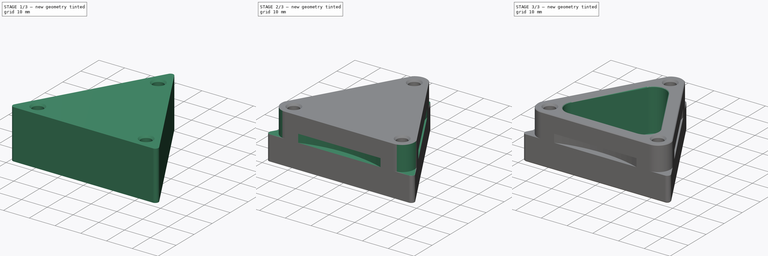
[diagram: build sequence overview — one tinted view per stage of 3, left to right]
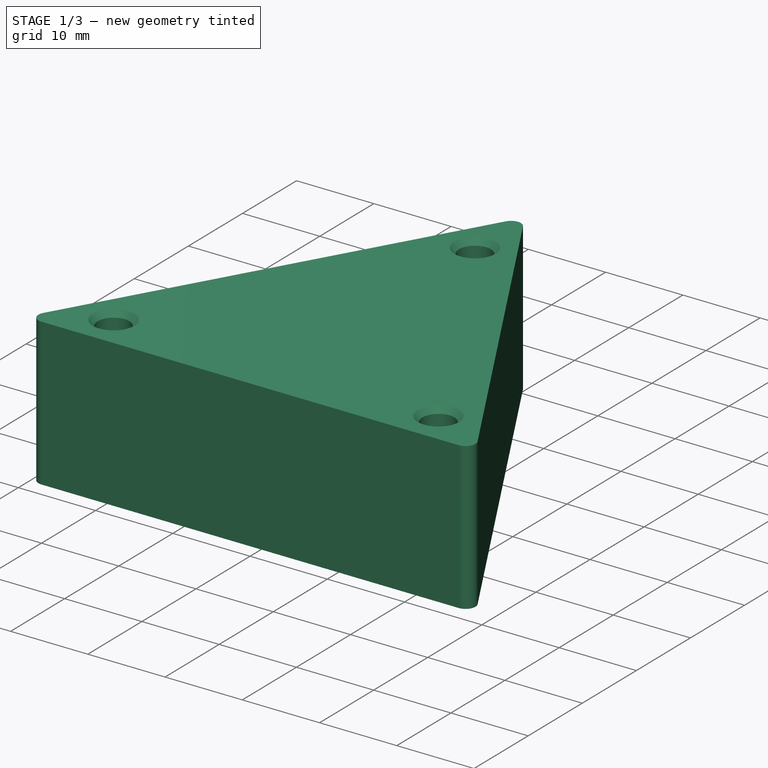
[diagram: stage 1 of 3 — iso view after this stage's code; geometry added in this stage tinted green]
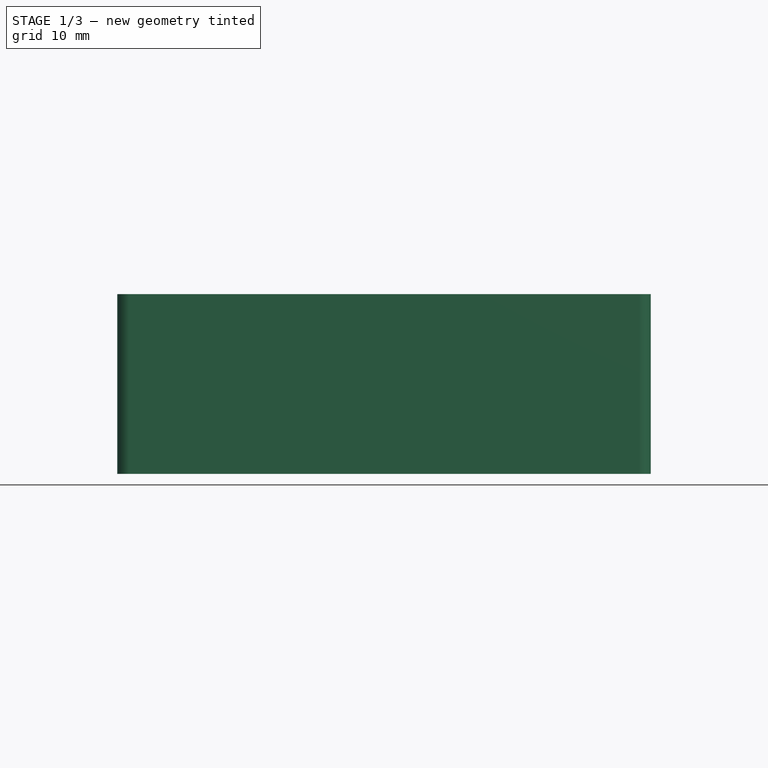
[diagram: stage 1 of 3 — front view after this stage's code; geometry added in this stage tinted green]
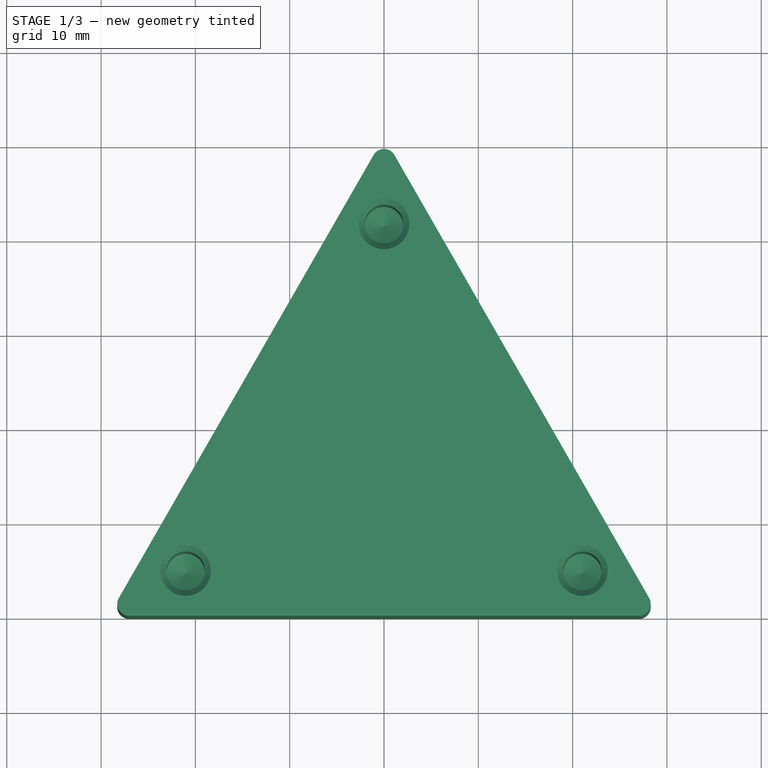
[diagram: stage 1 of 3 — top view after this stage's code; geometry added in this stage tinted green]
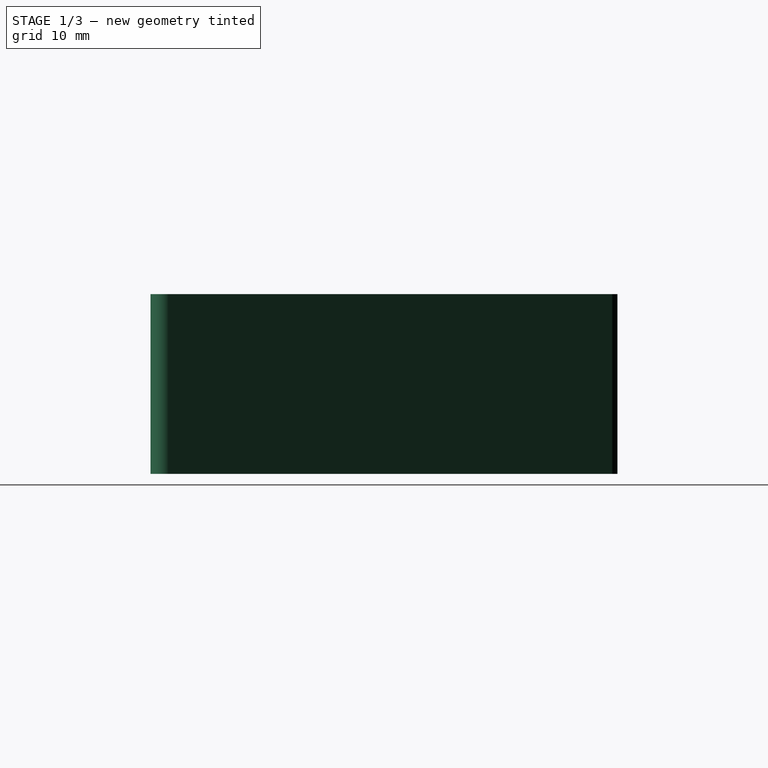
[diagram: stage 1 of 3 — right view after this stage's code; geometry added in this stage tinted green]
FCSTD DOCUMENT  (FreeCAD 0.19R24291 (Git))
Label: TITAN-4M
License: All rights reserved
LicenseURL: http://en.wikipedia.org/wiki/All_rights_reserved
objects: Sketcher::SketchObject×5, PartDesign::Pocket×3, PartDesign::Fillet×2, PartDesign::Pad×1, PartDesign::Hole×1, PartDesign::Chamfer×1, PartDesign::Body×1
note: 22 computed .brp shape members not serialized (recipe doc carries the construction recipe); baked Part::Feature solids carry a one-line shape summary decoded from their .brp

FEATURE [Sketcher::SketchObject] Sketch
  FullyConstrained = true
  MapMode = 5
  Support = -> [XY_Plane]
  sketch-geometry (3):
    g0: LineSegment StartX=-29.21 StartY=0 StartZ=0 EndX=29.21 EndY=0 EndZ=0
    g1: LineSegment StartX=29.21 StartY=0 StartZ=0 EndX=0 EndY=50.8 EndZ=0
    g2: LineSegment StartX=0 StartY=50.8 StartZ=0 EndX=-29.21 EndY=0 EndZ=0
  constraints (8):
    c: Coincident(g0,g1)
    c: PointOnObject(g1,g-2)
    c: Coincident(g1,g2)
    c: Coincident(g2,g0)
    c: DistanceY(g-1,g1) = 50.8
    c: Symmetric(g0,g0,g-1)
    c: PointOnObject(g0,g-1)
    c: DistanceX(g0,g-1) = 29.21
FEATURE [PartDesign::Pad] Pad
  Direction = (1,1,1)
  Length = 19.05
  Length2 = 99.9998
  Profile = -> Sketch
  Refine = true
  Type = 0
FEATURE [PartDesign::Fillet] Fillet
  Base = -> Pad [Edge1,Edge2,Edge5]
  BaseFeature = -> Pad
  Radius = 1.27
  Refine = true
  SupportTransform = false
FEATURE [Sketcher::SketchObject] Sketch001
  FullyConstrained = true
  MapMode = 5
  Placement = pos=(0,0,19.05) rot=(0,0,1;0rad)
  Support = -> [Fillet]
  sketch-geometry (3):
    g0: Circle CenterX=0 CenterY=41.5798 CenterZ=0 NormalX=0 NormalY=0 NormalZ=1 AngleXU=0 Radius=1.905
    g1: Circle CenterX=21.0312 CenterY=4.8006 CenterZ=0 NormalX=0 NormalY=0 NormalZ=1 AngleXU=0 Radius=1.905
    g2: Circle CenterX=-21.0312 CenterY=4.8006 CenterZ=0 NormalX=0 NormalY=0 NormalZ=1 AngleXU=0 Radius=1.905
  constraints (8):
    c: PointOnObject(g0,g-2)
    c: Equal(g2,g1)
    c: Equal(g1,g0)
    c: Diameter(g0) = 3.81
    c: DistanceY(g-1,g0) = 41.5798
    c: Symmetric(g1,g2,g-2)
    c: DistanceX(g2,g-1) = 21.0312
    c: DistanceY(g-1,g2) = 4.8006
FEATURE [PartDesign::Hole] Hole
  BaseFeature = -> Fillet
  Depth = 14.986
  DepthType = 0
  Diameter = 4.1
  DrillForDepth = false
  DrillPoint = 1
  DrillPointAngle = 118
  HoleCutCountersinkAngle = 82
  HoleCutCustomValues = false
  HoleCutDepth = 0
  HoleCutDiameter = 5.3594
  HoleCutType = 2
  ModelActualThread = false
  Profile = -> Sketch001
  Refine = true
  Tapered = false
  TaperedAngle = 90
  ThreadAngle = 60
  ThreadClass = 0
  ThreadCutOffInner = 0.085953
  ThreadCutOffOuter = 0.171906
  ThreadDirection = 0
  ThreadFit = 0
  ThreadPitch = 0.794
  ThreadSize = 8
  ThreadType = 4
  Threaded = true
  expr: Depth = 0.375" + 0.215"
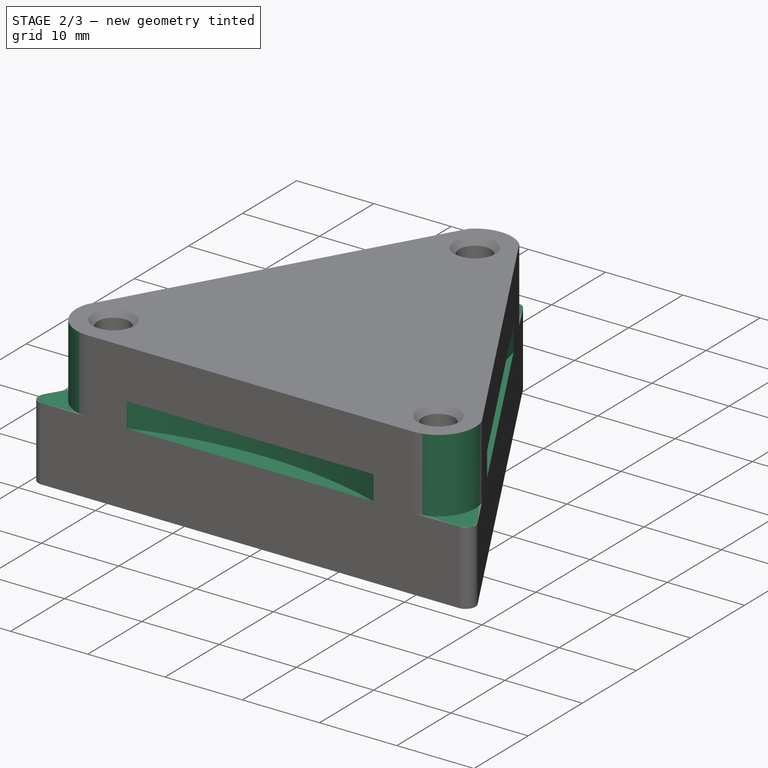
[diagram: stage 2 of 3 — iso view after this stage's code; geometry added in this stage tinted green]
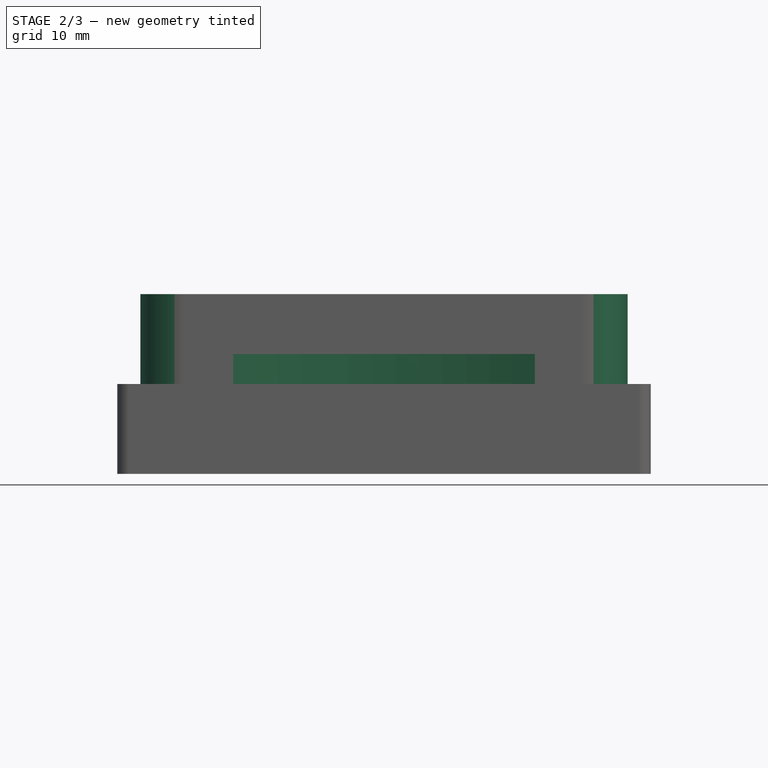
[diagram: stage 2 of 3 — front view after this stage's code; geometry added in this stage tinted green]
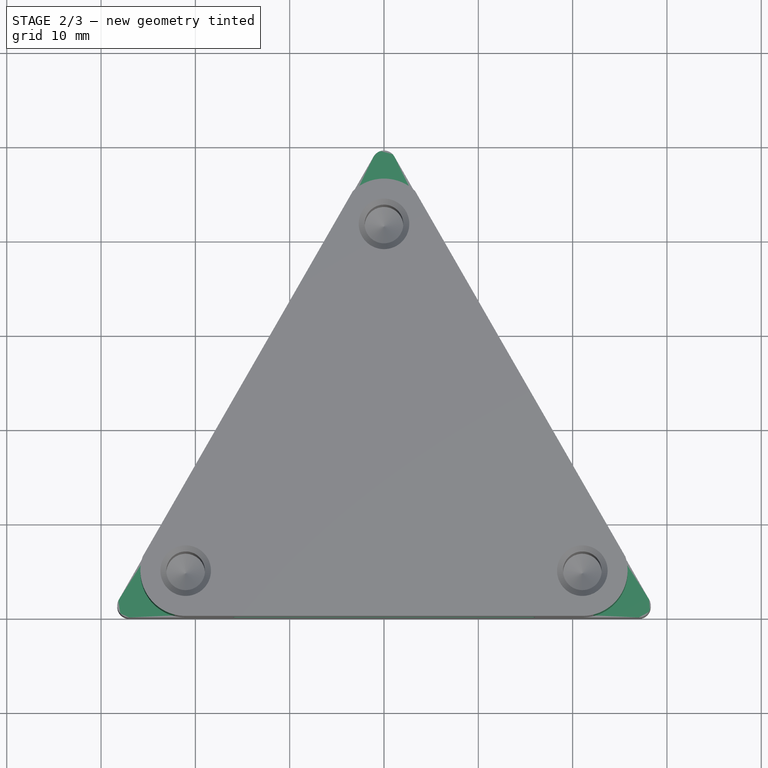
[diagram: stage 2 of 3 — top view after this stage's code; geometry added in this stage tinted green]
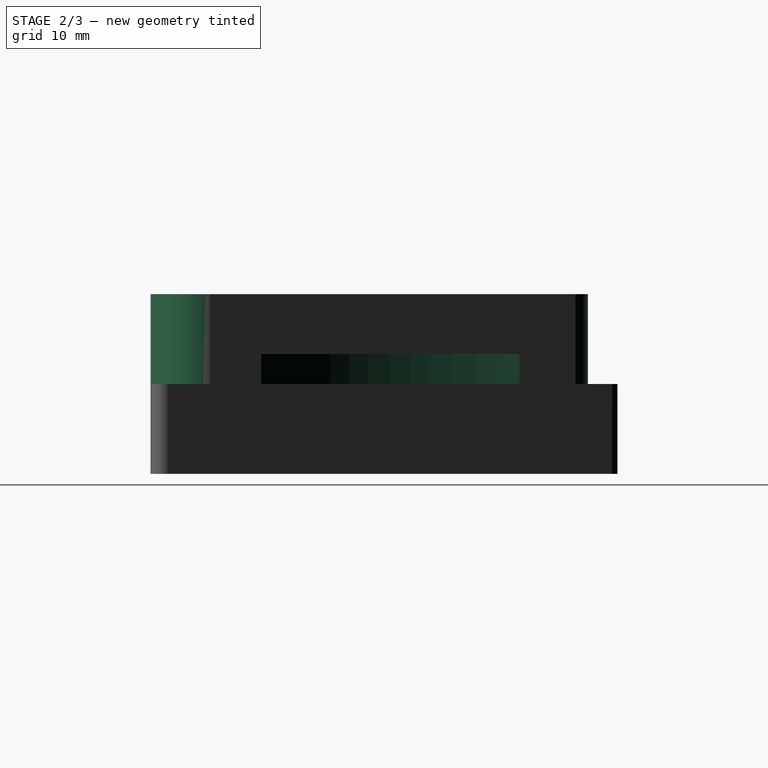
[diagram: stage 2 of 3 — right view after this stage's code; geometry added in this stage tinted green]
FEATURE [Sketcher::SketchObject] Sketch002
  ExternalGeometry = -> [Hole]
  FullyConstrained = true
  MapMode = 5
  Placement = pos=(0,0,19.05) rot=(0,0,1;0rad)
  Support = -> [Hole]
  sketch-geometry (7):
    g0: LineSegment StartX=-25.1986 StartY=7.1836 StartZ=0 EndX=-4.16738 EndY=43.9628 EndZ=0
    g1: ArcOfCircle CenterX=0 CenterY=41.5798 CenterZ=0 NormalX=0 NormalY=0 NormalZ=1 AngleXU=0 Radius=4.8006 StartAngle=0.519444 EndAngle=2.62215
    g2: LineSegment StartX=4.16738 StartY=43.9628 StartZ=0 EndX=25.1986 EndY=7.1836 EndZ=0
    g3: ArcOfCircle CenterX=21.0312 CenterY=4.8006 CenterZ=0 NormalX=0 NormalY=0 NormalZ=1 AngleXU=0 Radius=4.8006 StartAngle=4.71239 EndAngle=6.80263
    g4: LineSegment StartX=21.0312 StartY=0 StartZ=0 EndX=-21.0312 EndY=0 EndZ=0
    g5: ArcOfCircle CenterX=-21.0312 CenterY=4.8006 CenterZ=0 NormalX=0 NormalY=0 NormalZ=1 AngleXU=0 Radius=4.8006 StartAngle=2.62215 EndAngle=4.71239
    g6: Circle CenterX=0 CenterY=0 CenterZ=0 NormalX=0 NormalY=0 NormalZ=1 AngleXU=0 Radius=63.5
  constraints (14):
    c: Tangent(g0,g1) = 1.5708
    c: Tangent(g1,g2) = 1.5708
    c: Tangent(g2,g3) = 1.5708
    c: Tangent(g3,g4) = 1.5708
    c: Tangent(g4,g5) = 1.5708
    c: Tangent(g5,g0) = 1.5708
    c: Horizontal(g4)
    c: Coincident(g5,g-4)
    c: Coincident(g3,g-5)
    c: Coincident(g1,g-3)
    c: Equal(g1,g5)
    c: Diameter(g1) = 9.6012
    c: Coincident(g6,g-1)
    c: Diameter(g6) = 127
FEATURE [PartDesign::Pocket] Pocket
  BaseFeature = -> Hole
  Length = 9.525
  Length2 = 99.9998
  Profile = -> Sketch002
  Refine = true
  Type = 0
FEATURE [Sketcher::SketchObject] Sketch003
  FullyConstrained = true
  MapMode = 5
  Placement = pos=(0,0,9.525) rot=(0,0,1;0rad)
  Support = -> [Pocket]
  sketch-geometry (10):
    g0: Circle CenterX=0 CenterY=16.9418 CenterZ=0 NormalX=0 NormalY=0 NormalZ=1 AngleXU=0 Radius=65.1588
    g1: GeomPoint X=56.4388 Y=49.5046 Z=0
    g2: LineSegment StartX=56.4388 StartY=49.5046 StartZ=0 EndX=0 EndY=16.9418 EndZ=0
    g3: LineSegment StartX=56.4388 StartY=49.5046 StartZ=0 EndX=-56.4388 EndY=49.5046 EndZ=0
    g4: ArcOfCircle CenterX=-56.4388 CenterY=49.5046 CenterZ=0 NormalX=0 NormalY=0 NormalZ=1 AngleXU=0 Radius=50.8 StartAngle=4.58952 EndAngle=6.93024
    g5: ArcOfCircle CenterX=56.4388 CenterY=49.5046 CenterZ=0 NormalX=0 NormalY=0 NormalZ=1 AngleXU=0 Radius=50.8 StartAngle=2.49453 EndAngle=4.83526
    g6: ArcOfCircle CenterX=0 CenterY=-48.217 CenterZ=0 NormalX=0 NormalY=0 NormalZ=1 AngleXU=0 Radius=50.8 StartAngle=0.400432 EndAngle=2.74116
    g7: LineSegment StartX=-15.9075 StartY=80.129 StartZ=0 EndX=-62.665 EndY=-0.912406 EndZ=0
    g8: LineSegment StartX=15.9075 StartY=80.129 StartZ=0 EndX=62.665 EndY=-0.912406 EndZ=0
    g9: LineSegment StartX=46.7813 StartY=-28.4144 StartZ=0 EndX=-46.7813 EndY=-28.4144 EndZ=0
  constraints (29):
    c: PointOnObject(g0,g-2)
    c: DistanceY(g-1,g0) = 16.9418
    c: PointOnObject(g1,g0)
    c: DistanceY(g-1,g1) = 49.5046
    c: DistanceX(g-1,g1) = 56.4388
    c: Coincident(g2,g1)
    c: Coincident(g2,g0)
    c: Coincident(g3,g1)
    c: PointOnObject(g3,g0)
    c: Horizontal(g3)
    c: Coincident(g4,g3)
    c: Coincident(g5,g1)
    c: PointOnObject(g6,g-2)
    c: PointOnObject(g6,g0)
    c: Equal(g4,g5)
    c: Equal(g5,g6)
    c: Radius(g4) = 50.8
    c: PointOnObject(g6,g0)
    c: PointOnObject(g6,g0)
    c: PointOnObject(g4,g0)
    c: PointOnObject(g5,g0)
    c: PointOnObject(g5,g0)
    c: PointOnObject(g4,g0)
    c: Coincident(g7,g4)
    c: Coincident(g7,g4)
    c: Coincident(g8,g5)
    c: Coincident(g8,g5)
    c: Coincident(g9,g6)
    c: Coincident(g9,g6)
FEATURE [PartDesign::Pocket] Pocket001
  BaseFeature = -> Pocket
  Length = 3.175
  Length2 = 99.9998
  Profile = -> Sketch003
  Refine = true
  Reversed = true
  Type = 0
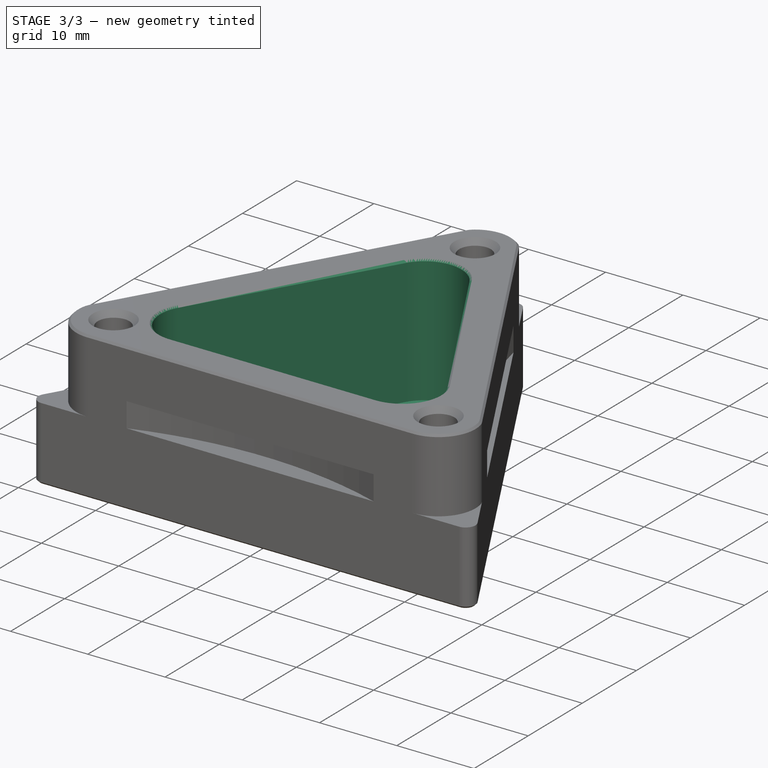
[diagram: stage 3 of 3 — iso view after this stage's code; geometry added in this stage tinted green]
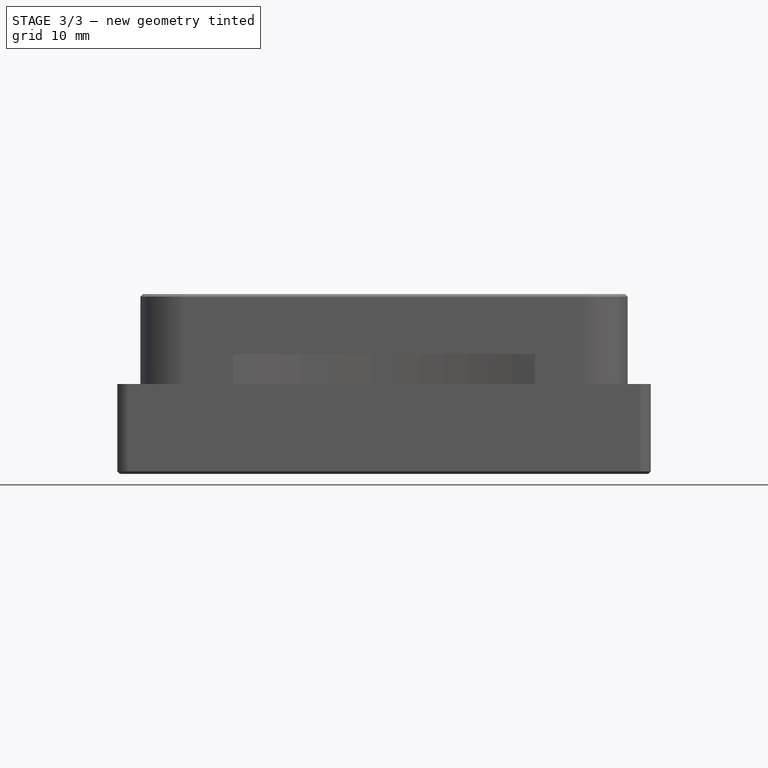
[diagram: stage 3 of 3 — front view after this stage's code; geometry added in this stage tinted green]
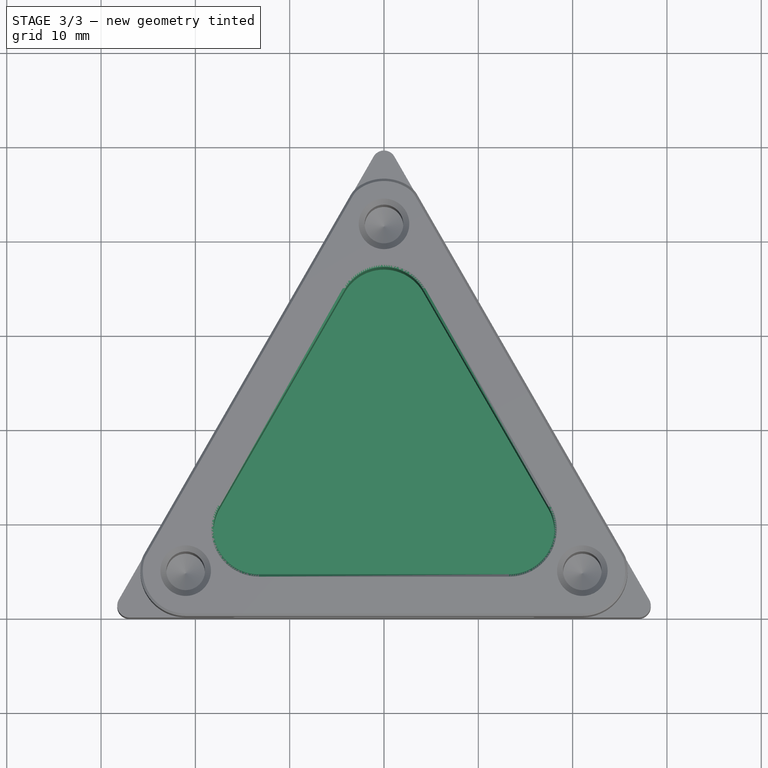
[diagram: stage 3 of 3 — top view after this stage's code; geometry added in this stage tinted green]
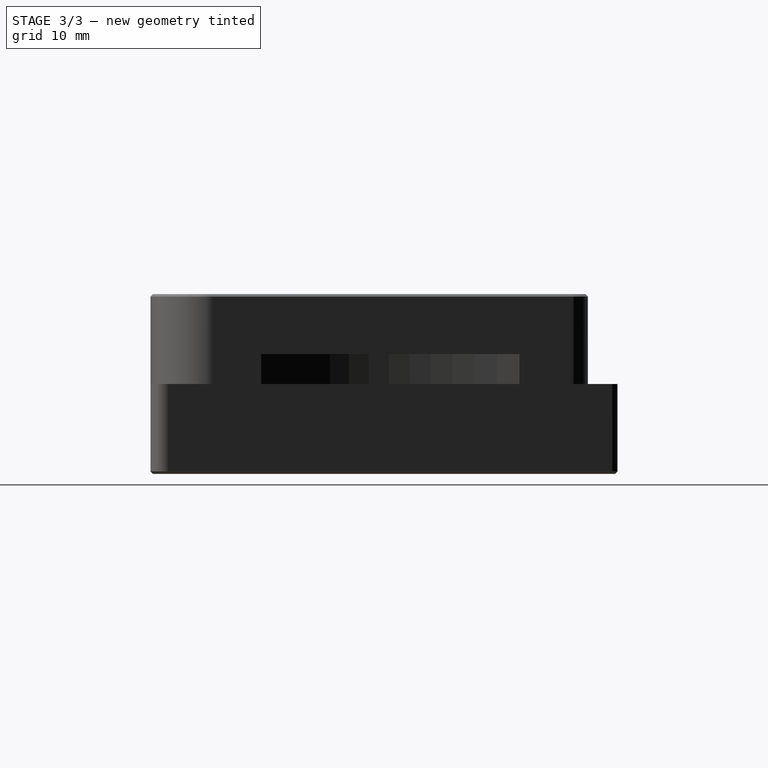
[diagram: stage 3 of 3 — right view after this stage's code; geometry added in this stage tinted green]
FEATURE [Sketcher::SketchObject] Sketch004
  ExternalGeometry = -> [Pocket001]
  FullyConstrained = true
  MapMode = 5
  Placement = pos=(0,0,19.05) rot=(0,0,1;0rad)
  Support = -> [Pocket001]
  sketch-geometry (7):
    g0: LineSegment StartX=-13.2726 StartY=4.4196 StartZ=0 EndX=13.2726 EndY=4.4196 EndZ=0
    g1: ArcOfCircle CenterX=13.2726 CenterY=9.2202 CenterZ=0 NormalX=0 NormalY=0 NormalZ=1 AngleXU=0 Radius=4.8006 StartAngle=4.71239 EndAngle=6.80678
    g2: LineSegment StartX=17.4301 StartY=11.6205 StartZ=0 EndX=4.15744 EndY=34.6094 EndZ=0
    g3: ArcOfCircle CenterX=0 CenterY=32.2091 CenterZ=0 NormalX=0 NormalY=0 NormalZ=1 AngleXU=0 Radius=4.8006 StartAngle=0.523599 EndAngle=2.61799
    g4: LineSegment StartX=-4.15744 StartY=34.6094 StartZ=0 EndX=-17.4301 EndY=11.6205 EndZ=0
    g5: ArcOfCircle CenterX=-13.2726 CenterY=9.2202 CenterZ=0 NormalX=0 NormalY=0 NormalZ=1 AngleXU=0 Radius=4.8006 StartAngle=2.61799 EndAngle=4.71239
    g6: LineSegment StartX=-17.4301 StartY=11.6205 StartZ=0 EndX=-21.2615 EndY=13.8235 EndZ=0
  constraints (18):
    c: Tangent(g0,g1) = -1.5708
    c: Tangent(g1,g2) = -1.5708
    c: Tangent(g2,g3) = -1.5708
    c: Tangent(g3,g4) = -1.5708
    c: Tangent(g4,g5) = -1.5708
    c: Tangent(g5,g0) = -1.5708
    c: Horizontal(g0)
    c: DistanceY(g-1,g0) = 4.4196
    c: Equal(g5,g1)
    c: Equal(g1,g3)
    c: Radius(g3) = 4.8006
    c: PointOnObject(g3,g-2)
    c: Equal(g0,g4)
    c: Equal(g4,g2)
    c: Coincident(g6,g4)
    c: PointOnObject(g6,g-3)
    c: Perpendicular(g-3,g6)
    c: Distance(g6) = 4.4196
FEATURE [PartDesign::Pocket] Pocket002
  BaseFeature = -> Pocket001
  Length = 16.51
  Length2 = 99.9998
  Profile = -> Sketch004
  Refine = true
  Type = 0
FEATURE [PartDesign::Fillet] Fillet001
  Base = -> Pocket002 [Edge23,Edge55,Edge48,Edge7]
  BaseFeature = -> Pocket002
  Radius = 2.54
  Refine = true
  SupportTransform = false
FEATURE [PartDesign::Chamfer] Chamfer
  Angle = 45
  Base = -> Fillet001 [Edge45,Edge22,Edge12]
  BaseFeature = -> Fillet001
  ChamferType = 0
  FlipDirection = false
  Refine = true
  Size = 0.254
  Size2 = 1
  SupportTransform = false
FEATURE [PartDesign::Body] Body
  Group = -> [Sketch,Pad,Fillet,Sketch001,Hole,Sketch002,Pocket,Sketch003,Pocket001,Sketch004,Pocket002,Fillet001,Chamfer]
  Origin = -> Origin
  Tip = -> Chamfer
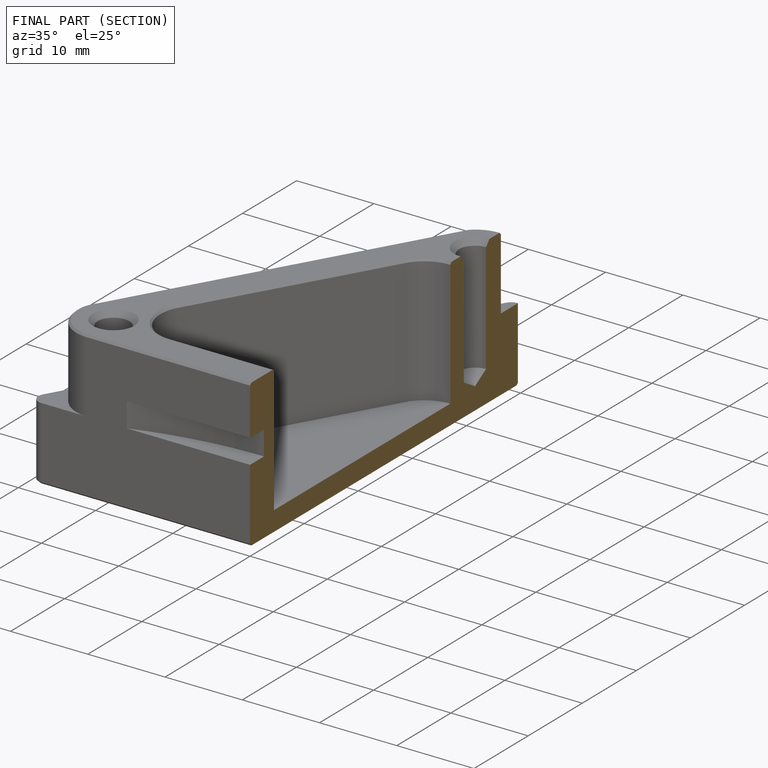
[diagram: finished part — half-section view (interior)]
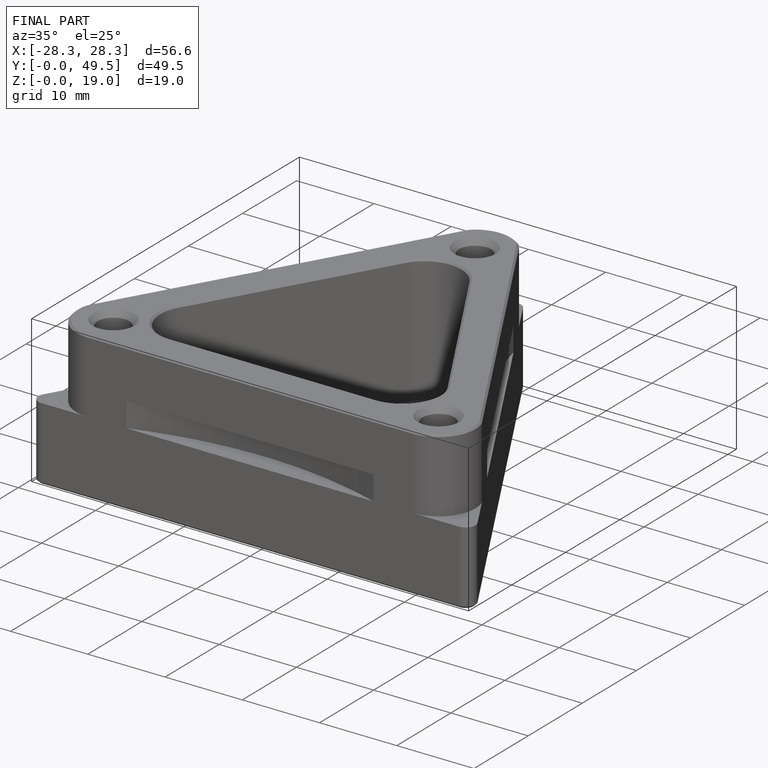
[diagram: finished part — iso view with bounding-box wireframe]
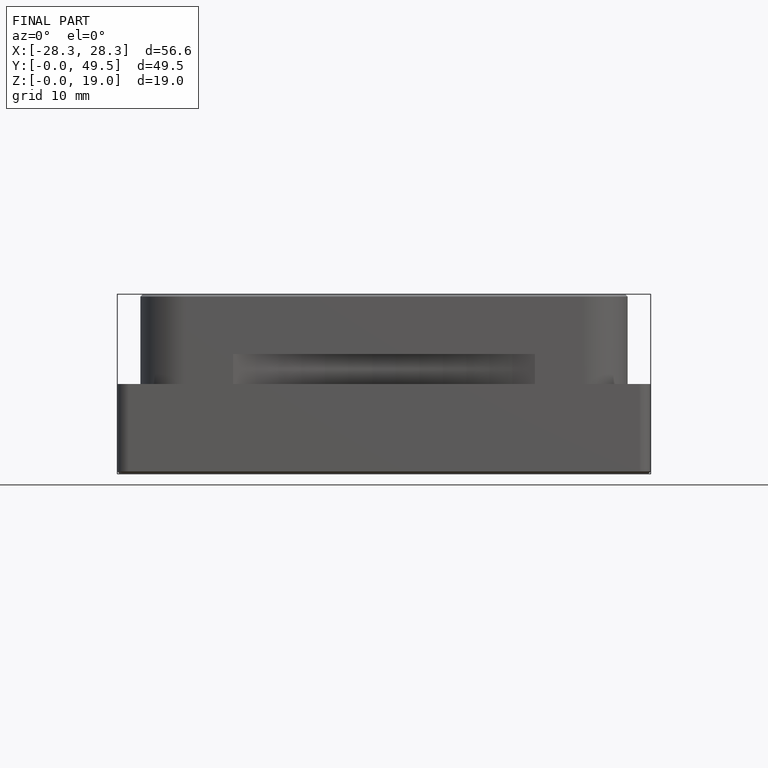
[diagram: finished part — front view with bounding-box wireframe]
